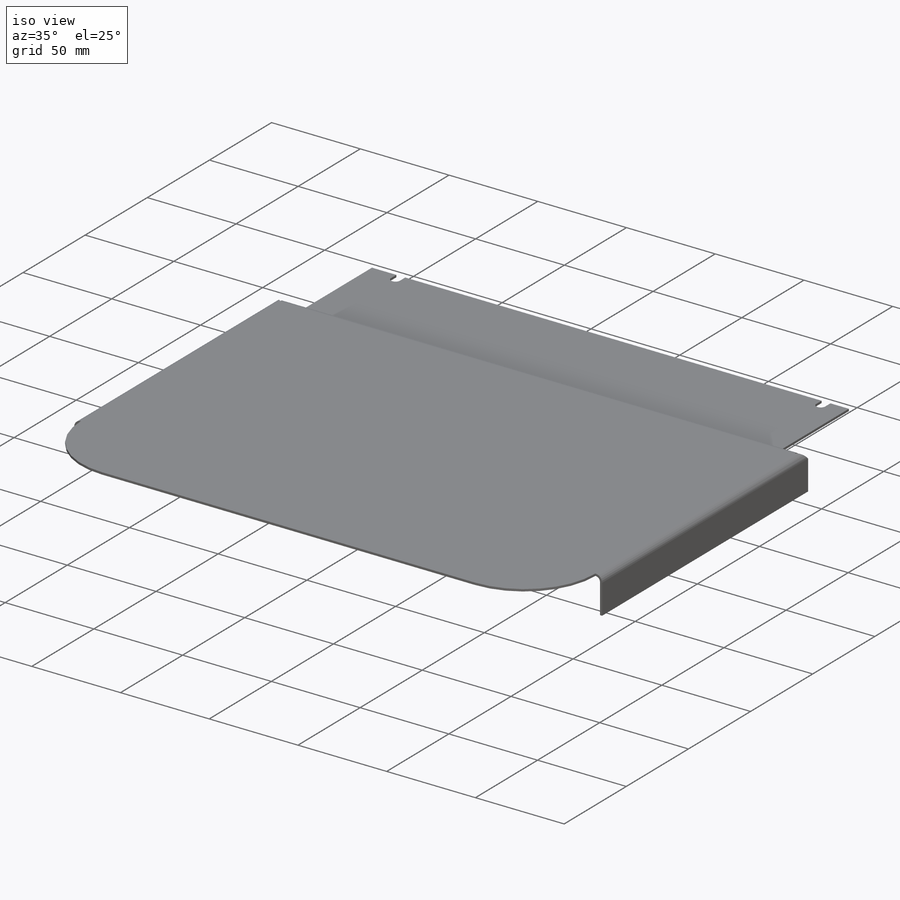
[diagram: iso view]
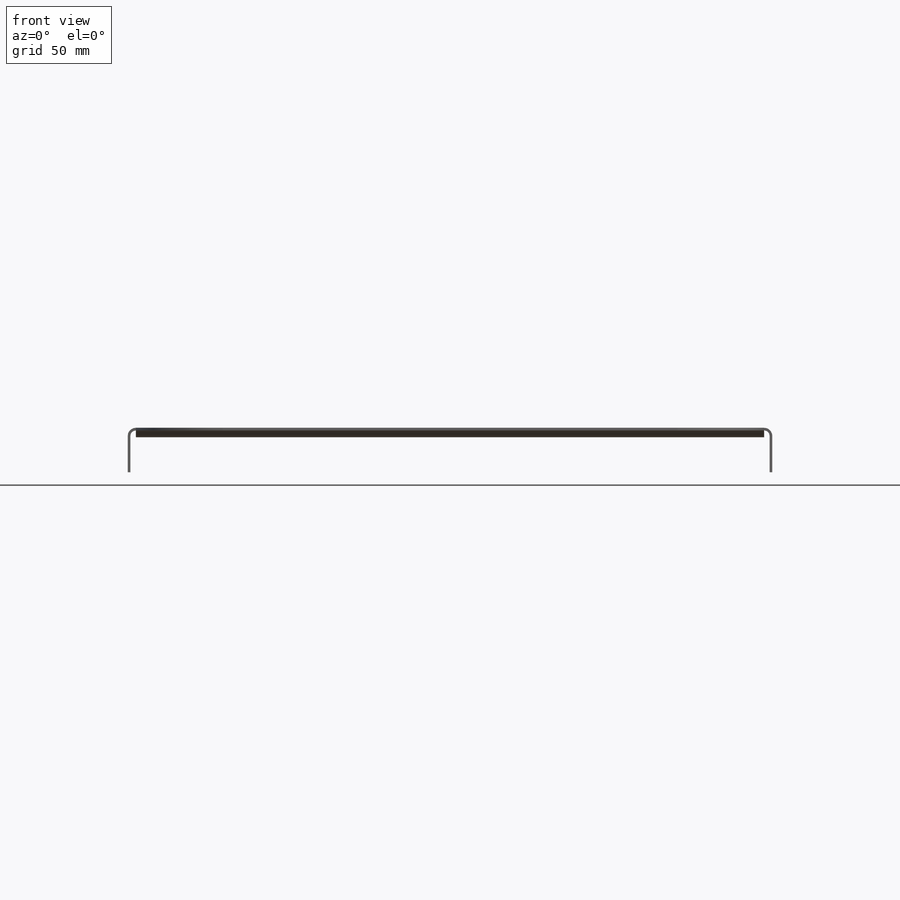
[diagram: front view]
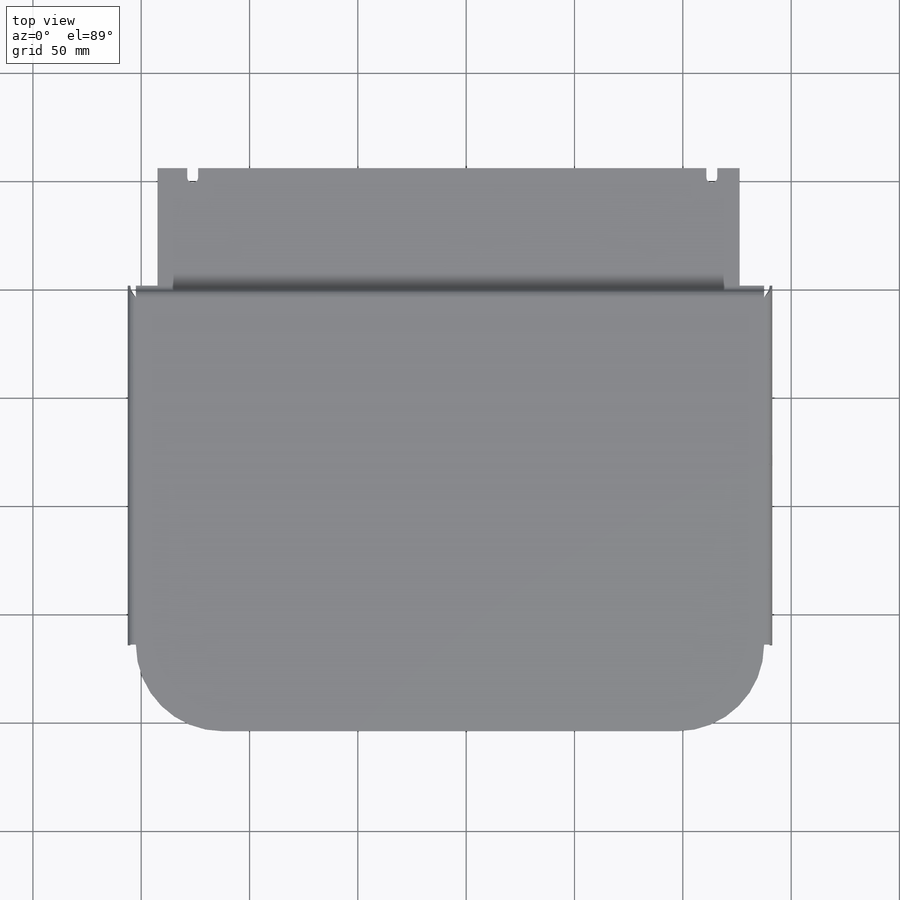
[diagram: top view]
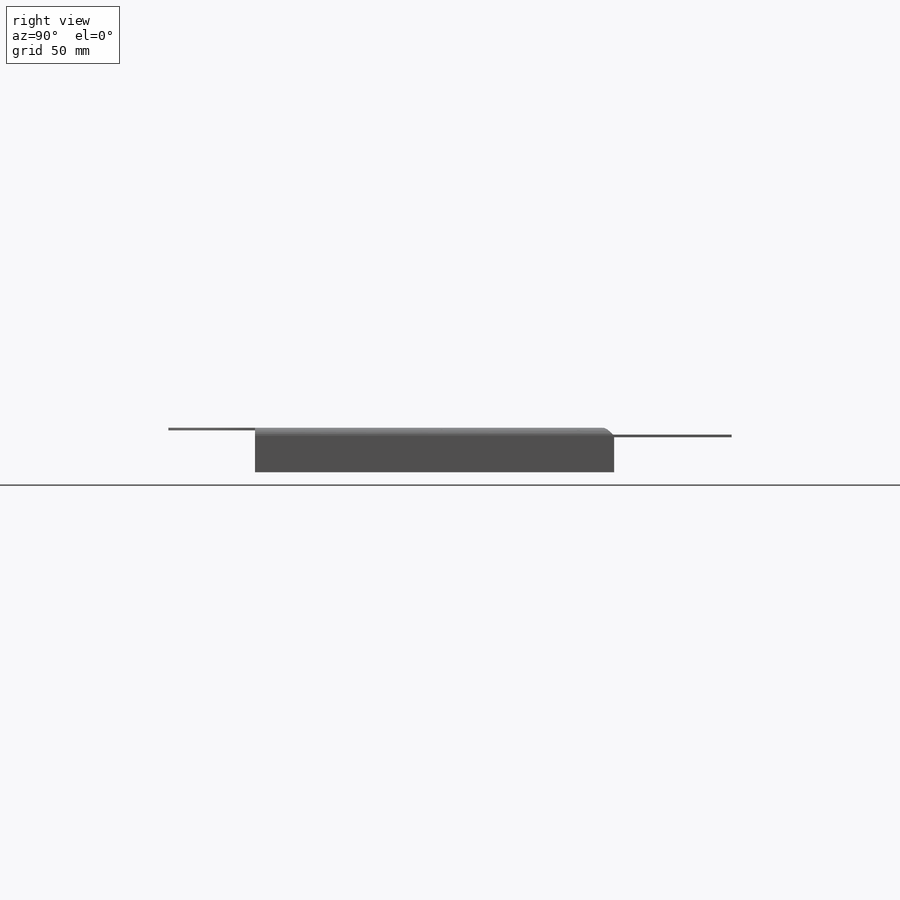
[diagram: right view]
SOLIDWORKS PART (.sldprt)
format: sldprt  version: not decoded by parser v0  size: 383,488 bytes
history: native  units: mm
features: sketch x16, sheet_metal_op x8, cut_extrude x2, material x1 + 4 further entries (+13 scaffold rows collapsed; 5 parser-record rows omitted)
feature tree (49):
  scaffold x13  (default folders/planes/origin — collapsed)
  material  "Material <not specified>"
  sketch  "Sketch1"  dims[c1.D3=40.0mm c1.D1=290.0mm c1.D2=260.0mm c2.D1=2.54mm c2.D2=0.5 c2.D3=0.0mm c2.D6=500.0mm]
  sheet_metal_op  "Base-Flange1"
  sketch  "Sketch18"
  parser-record x5  (decoder bookkeeping rows leaked as tree rows — omitted from the tree; the rows remain in map.json)
  sheet_metal_op  "JogBend5"
  sketch  "Sketch38"
  sketch  "Sketch39"
  sheet_metal_op  "EdgeBend7"
  sheet_metal_op  "EdgeBend8"
  sketch  "Sketch42"  dims[D1=10.0mm]
  cut_extrude  "Cut-Extrude3"  Depth=10mm
  sketch  "Sketch45"  dims[D1=~2.391966mm]
  cut_extrude  "Cut-Extrude10"  Depth=10mm
  sketch  "Bend-Lines1"
  sketch  "Bounding-Box1"
  sheet_metal_op  "Sheet-Metal1"
  "Flat-Pattern1"
  sketch  "Bend-Lines2"
  sketch  "Bounding-Box2"
  sheet_metal_op  "Sheet-Metal7"
  "Flat-Pattern1"
  sketch  "Bend-Lines2"
  sketch  "Bounding-Box2"
  sheet_metal_op  "Sheet-Metal8"
  "Flat-Pattern1"
  sketch  "Bend-Lines2"
  sketch  "Bounding-Box2"
  sheet_metal_op  "Sheet-Metal10"
  "Flat-Pattern1"
  sketch  "Bend-Lines2"
  sketch  "Bounding-Box2"
decode coverage: 5 of 26 modeling features carry decoded parameters; 4 rows unclassified (native names shown)
note: ~ marks probable driven/reference dimensions
note: suppression state not decoded; provenance and decode notes live in map.json
